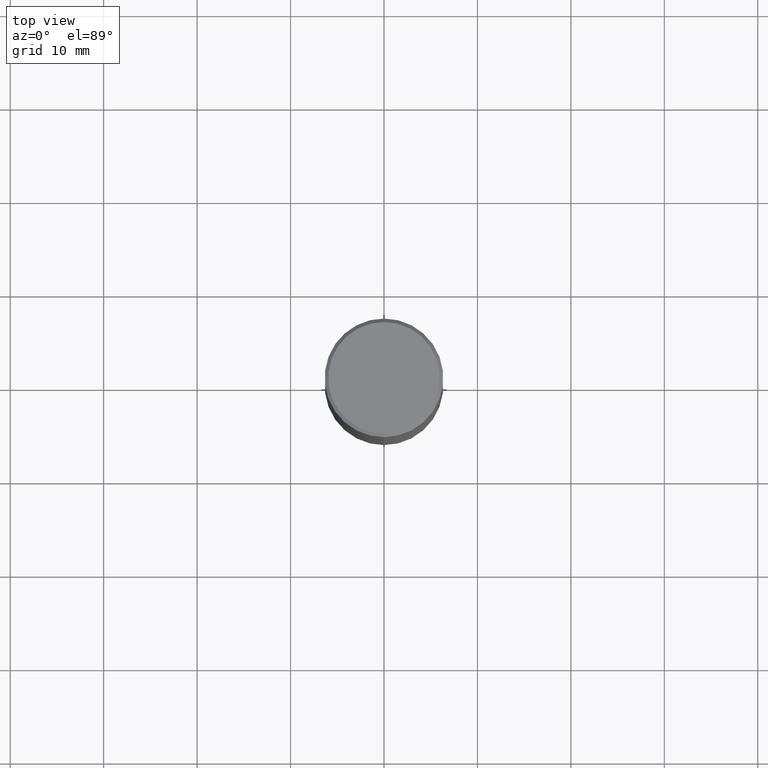
[diagram: clean part render]
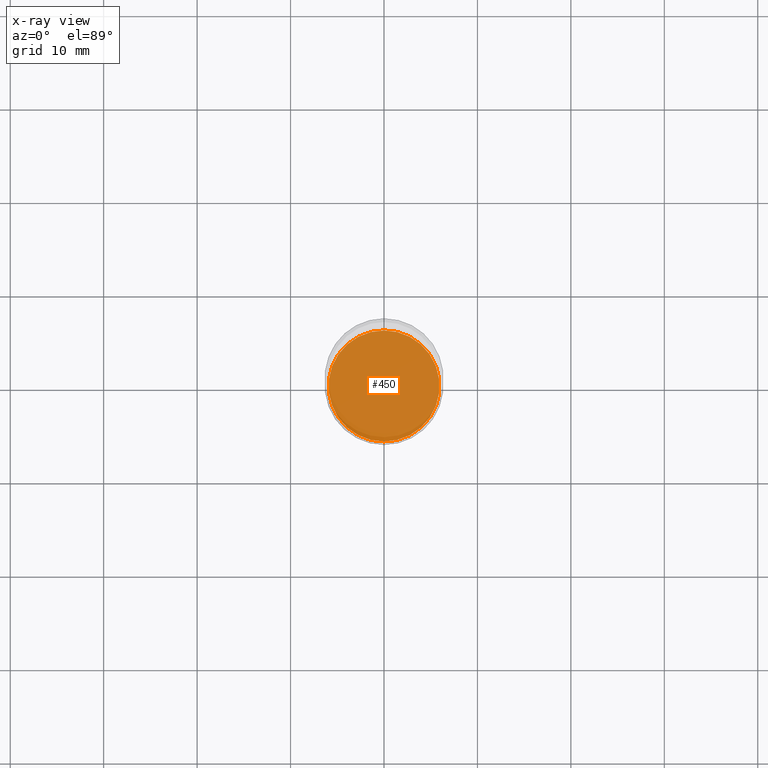
[diagram: x-ray — body ghosted, one internal face saturated and labeled with its STEP entity id]
A machine part, top view, then the same camera in x-ray: the body is ghosted and one INTERNAL B-rep face — a face not visible from any outside direction — is saturated and labeled: STEP entity #450.
In plain terms, the highlighted planar face has unit normal (-0, 0, 1).
Its self-contained STEP definition (entity closure, byte-faithful):
#9 = DIRECTION ( 'NONE',  ( -6.982962677686265922E-15, -1.000000000000000000, 3.491087603084271538E-15 ) ) ;
#17 = CARTESIAN_POINT ( 'NONE',  ( 4.891487500792091851E-29, -6.982175206168543076E-15, -2.000000000000000444 ) ) ;
#28 = AXIS2_PLACEMENT_3D ( 'NONE', #299, #300, #417 ) ;
#55 = DIRECTION ( 'NONE',  ( -2.445743750396045645E-29, 3.491087603084271144E-15, 1.000000000000000000 ) ) ;
#67 = VERTEX_POINT ( 'NONE', #227 ) ;
#97 = CARTESIAN_POINT ( 'NONE',  ( 1.663735815782323276E-15, 0.2338999999999930302, -2.000000000000000888 ) ) ;
#116 = EDGE_CURVE ( 'NONE', #331, #67, #337, .T. ) ;
#168 = DIRECTION ( 'NONE',  ( -6.982962677686265922E-15, -1.000000000000000000, 3.503866601536036525E-15 ) ) ;
#202 = PLANE ( 'NONE',  #258 ) ;
#205 = ORIENTED_EDGE ( 'NONE', *, *, #408, .F. ) ;
#227 = CARTESIAN_POINT ( 'NONE',  ( -1.633314970310768600E-15, -0.2339000000000069635, -1.999999999999999334 ) ) ;
#258 = AXIS2_PLACEMENT_3D ( 'NONE', #484, #365, #9 ) ;
#287 = FACE_OUTER_BOUND ( 'NONE', #458, .T. ) ;
#299 = CARTESIAN_POINT ( 'NONE',  ( 4.891487500792091851E-29, -6.982175206168543076E-15, -2.000000000000000444 ) ) ;
#300 = DIRECTION ( 'NONE',  ( -2.445743750396045645E-29, 3.491087603084271144E-15, 1.000000000000000000 ) ) ;
#331 = VERTEX_POINT ( 'NONE', #97 ) ;
#337 = CIRCLE ( 'NONE', #28, 0.2338999999999999968 ) ;
#365 = DIRECTION ( 'NONE',  ( -2.445743750396045085E-29, 3.491087603084271538E-15, 1.000000000000000000 ) ) ;
#408 = EDGE_CURVE ( 'NONE', #67, #331, #418, .T. ) ;
#417 = DIRECTION ( 'NONE',  ( -6.982962677686265922E-15, -1.000000000000000000, 3.503866601536036525E-15 ) ) ;
#418 = CIRCLE ( 'NONE', #496, 0.2338999999999999968 ) ;
#450 = ADVANCED_FACE ( 'NONE', ( #287 ), #202, .F. ) ;
#458 = EDGE_LOOP ( 'NONE', ( #205, #506 ) ) ;
#484 = CARTESIAN_POINT ( 'NONE',  ( 4.891487500792091851E-29, -6.982175206168543076E-15, -2.000000000000000444 ) ) ;
#496 = AXIS2_PLACEMENT_3D ( 'NONE', #17, #55, #168 ) ;
#506 = ORIENTED_EDGE ( 'NONE', *, *, #116, .F. ) ;